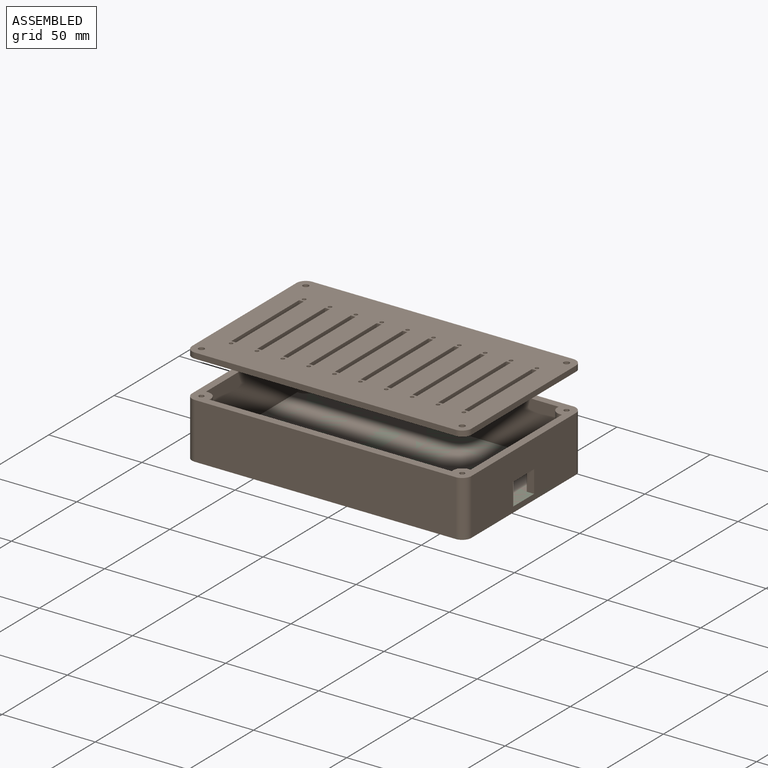
[diagram: assembled view]
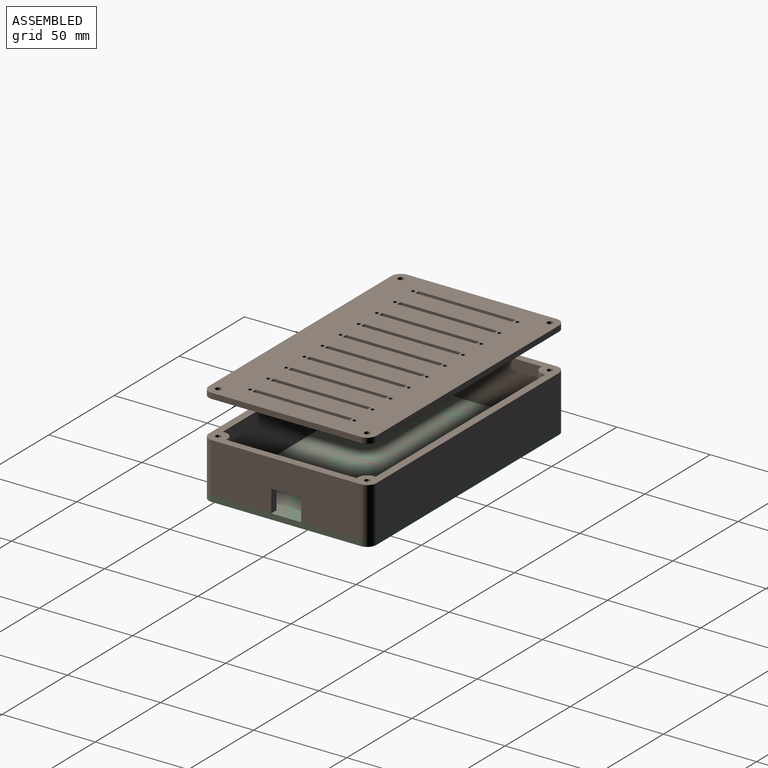
[diagram: assembled view, second angle]
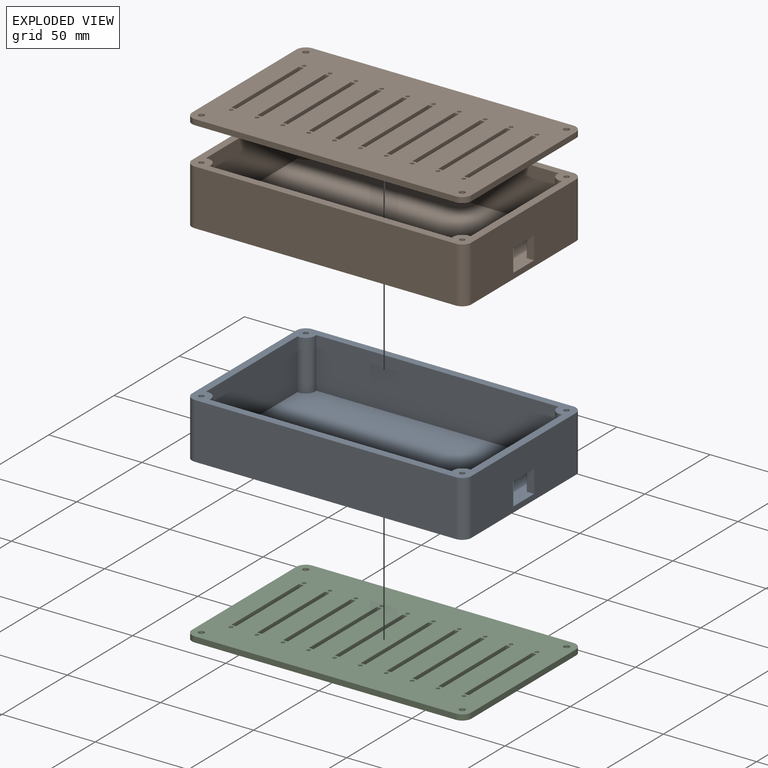
[diagram: exploded view]
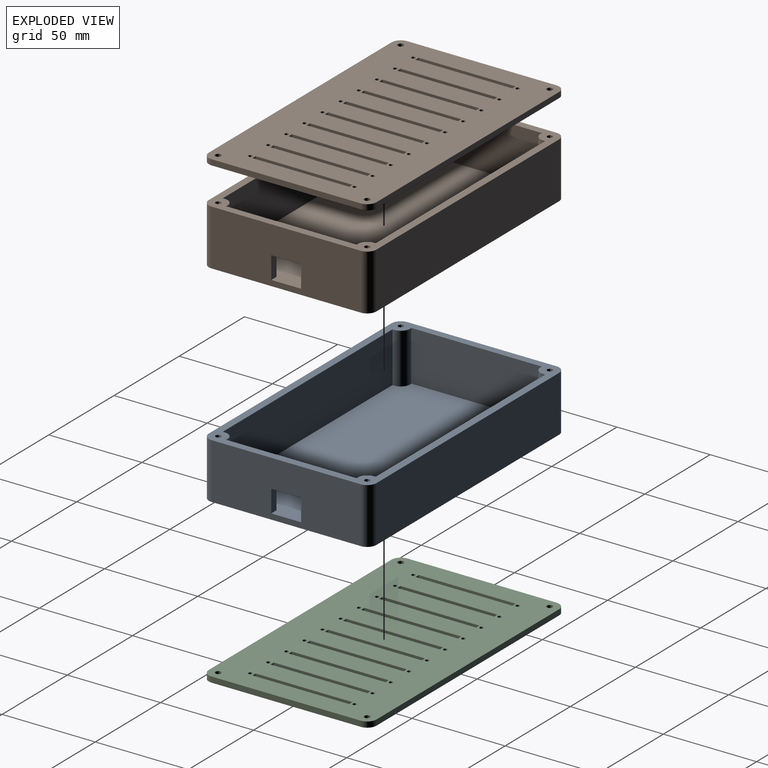
[diagram: exploded view, second angle]
FCSTD DOCUMENT  (FreeCAD 0.19R24276 (Git))
Label: mixer
License: All rights reserved
LicenseURL: http://en.wikipedia.org/wiki/All_rights_reserved
objects: Sketcher::SketchObject×8, PartDesign::Pocket×5, PartDesign::CoordinateSystem×3, PartDesign::Pad×3, App::DocumentObjectGroup×2, PartDesign::Body×2, PartDesign::Plane×2, App::Link×2, App::FeaturePython×1, PartDesign::LinearPattern×1, Spreadsheet::Sheet×1, App::Part×1, PartDesign::Point×1
note: 33 computed .brp shape members not serialized (recipe doc carries the construction recipe); baked Part::Feature solids carry a one-line shape summary decoded from their .brp

FEATURE [PartDesign::CoordinateSystem] LCS_Origin  label="Model_LCS"
  AttacherType = Attacher::AttachEngine3D
  MapMode = 2
  Support = -> [X_Axis]
FEATURE [App::DocumentObjectGroup] Constraints
FEATURE [App::FeaturePython] Variables  # WARN: FeaturePython — macro-defined, semantics opaque (R4)
  panel_remove = 20
FEATURE [PartDesign::CoordinateSystem] LCS_0  label="TopPanel_LCS"
  AttacherType = Attacher::AttachEngine3D
  MapMode = 2
  Support = -> [X_Axis001]
FEATURE [Sketcher::SketchObject] Sketch  label="TopPanel_Panel_S"
  FullyConstrained = true
  MapMode = 5
  Support = -> [XY_Plane001]
  sketch-geometry (8):
    g0: LineSegment StartX=-70 StartY=45 StartZ=0 EndX=70 EndY=45 EndZ=0
    g1: LineSegment StartX=75 StartY=40 StartZ=0 EndX=75 EndY=-40 EndZ=0
    g2: LineSegment StartX=70 StartY=-45 StartZ=0 EndX=-70 EndY=-45 EndZ=0
    g3: LineSegment StartX=-75 StartY=-40 StartZ=0 EndX=-75 EndY=40 EndZ=0
    g4: ArcOfCircle CenterX=-70 CenterY=40 CenterZ=0 NormalX=0 NormalY=0 NormalZ=1 AngleXU=0 Radius=5 StartAngle=1.5708 EndAngle=3.14159
    g5: ArcOfCircle CenterX=-70 CenterY=-40 CenterZ=0 NormalX=0 NormalY=0 NormalZ=1 AngleXU=0 Radius=5 StartAngle=3.14159 EndAngle=4.71239
    g6: ArcOfCircle CenterX=70 CenterY=-40 CenterZ=0 NormalX=0 NormalY=0 NormalZ=1 AngleXU=0 Radius=5 StartAngle=4.71239 EndAngle=6.28319
    g7: ArcOfCircle CenterX=70 CenterY=40 CenterZ=0 NormalX=0 NormalY=0 NormalZ=1 AngleXU=0 Radius=5 StartAngle=0 EndAngle=1.5708
  constraints (18):
    c: Horizontal(g2)
    c: Tangent(g0,g4) = 1.5708
    c: Tangent(g3,g4) = 1.5708
    c: Tangent(g3,g5) = 1.5708
    c: Tangent(g2,g5) = 1.5708
    c: Tangent(g1,g6) = 1.5708
    c: Tangent(g2,g6) = 1.5708
    c: Tangent(g0,g7) = 1.5708
    c: Tangent(g1,g7) = 1.5708
    c: Equal(g4,g5)
    c: Equal(g5,g7)
    c: Equal(g7,g6)
    c: Horizontal(g0)
    c: Radius(g4) = 5  'corner_radius'
    c: Symmetric(g3,g3,g-1)
    c: Symmetric(g3,g1,g-2)
    c: DistanceY(g2,g0) = 90  'depth'
    c: DistanceX(g3,g1) = 150  'width'
FEATURE [PartDesign::Pad] Pad  label="TopPanel_Panel"
  Direction = (1,1,1)
  Length = 3
  Length2 = 100
  Profile = -> Sketch
  Type = 0
FEATURE [Sketcher::SketchObject] Sketch002  label="TopPanel_FaderCutouts_S"
  AttachmentOffset = pos=(-62.5,0,0) rot=(0,0,1;0rad)
  FullyConstrained = true
  MapMode = 5
  Placement = pos=(-62.5,0,0) rot=(0,0,1;0rad)
  Support = -> [XY_Plane001]
  expr: .AttachmentOffset.Base.x = -<<Dimensions>>.fader_span / 2
  sketch-geometry (8):
    g0: LineSegment StartX=-1.25 StartY=26 StartZ=0 EndX=1.25 EndY=26 EndZ=0
    g1: LineSegment StartX=1.25 StartY=26 StartZ=0 EndX=1.25 EndY=-26 EndZ=0
    g2: LineSegment StartX=1.25 StartY=-26 StartZ=0 EndX=-1.25 EndY=-26 EndZ=0
    g3: LineSegment StartX=-1.25 StartY=-26 StartZ=0 EndX=-1.25 EndY=26 EndZ=0
    g4: Circle CenterX=0 CenterY=28 CenterZ=0 NormalX=0 NormalY=0 NormalZ=1 AngleXU=0 Radius=1
    g5: Circle CenterX=-1e-16 CenterY=-28 CenterZ=0 NormalX=0 NormalY=0 NormalZ=1 AngleXU=0 Radius=1
    g6: LineSegment StartX=0 StartY=28 StartZ=0 EndX=0 EndY=26 EndZ=0
    g7: LineSegment StartX=-1e-16 StartY=-28 StartZ=0 EndX=-1e-16 EndY=-26 EndZ=0
  constraints (20):
    c: Coincident(g0,g1)
    c: Coincident(g1,g2)
    c: Coincident(g2,g3)
    c: Coincident(g3,g0)
    c: Horizontal(g2)
    c: Vertical(g1)
    c: Equal(g4,g5)
    c: DistanceX(g0,g0) = 2.5  'cutout_width'
    c: DistanceY(g1,g1) = 52  'cutout_height'
    c: Diameter(g4) = 2  'mounting_hole_diameter'
    c: Vertical(g6)
    c: Vertical(g7)
    c: Coincident(g5,g7)
    c: Coincident(g4,g6)
    c: Symmetric(g0,g0,g6)
    c: Symmetric(g2,g1,g7)
    c: Equal(g6,g7)
    c: DistanceY(g6,g6) = 2  'mounting_hole_offset'
    c: Symmetric(g0,g2,g-1)
    c: Symmetric(g0,g0,g-2)
FEATURE [PartDesign::Pocket] Pocket  label="TopPanel_FaderCutout"
  BaseFeature = -> Pad
  Length = 0
  Length2 = 100
  Profile = -> Sketch002
  Reversed = true
  Type = 1
FEATURE [PartDesign::LinearPattern] LinearPattern  label="TopPanel_FaderCutouts"
  BaseFeature = -> Pocket
  Direction = -> Sketch002 [H_Axis]
  Length = 125
  Occurrences = 10
  Originals = -> [Pocket]
  expr: Length = <<Dimensions>>.fader_span
FEATURE [Spreadsheet::Sheet] Spreadsheet  label="Dimensions"
  cells = A1=Fader Span; B1(fader_span)==125mm
FEATURE [Sketcher::SketchObject] Sketch003  label="TopPanel_MountingHoles_S"
  FullyConstrained = true
  MapMode = 5
  Support = -> [XY_Plane001]
  expr: .Constraints.centres_y = Sketch.Constraints.depth - 10mm
  expr: .Constraints.centres_x = Sketch.Constraints.width - 10mm
  sketch-geometry (7):
    g0: LineSegment StartX=-70 StartY=2e-16 StartZ=0 EndX=70 EndY=-1e-16 EndZ=0
    g1: LineSegment StartX=-70 StartY=40 StartZ=0 EndX=-70 EndY=-40 EndZ=0
    g2: LineSegment StartX=70 StartY=40 StartZ=0 EndX=70 EndY=-40 EndZ=0
    g3: Circle CenterX=-70 CenterY=40 CenterZ=0 NormalX=0 NormalY=0 NormalZ=1 AngleXU=0 Radius=1.55
    g4: Circle CenterX=-70 CenterY=-40 CenterZ=0 NormalX=0 NormalY=0 NormalZ=1 AngleXU=0 Radius=1.55
    g5: Circle CenterX=70 CenterY=40 CenterZ=0 NormalX=0 NormalY=0 NormalZ=1 AngleXU=0 Radius=1.55
    g6: Circle CenterX=70 CenterY=-40 CenterZ=0 NormalX=0 NormalY=0 NormalZ=1 AngleXU=0 Radius=1.55
  constraints (17):
    c: Vertical(g1)
    c: Vertical(g2)
    c: Symmetric(g1,g1,g0)
    c: Symmetric(g2,g2,g0)
    c: DistanceX(g0,g0) = 140  'centres_x'
    c: Equal(g1,g2)
    c: DistanceY(g2,g2) = 80  'centres_y'
    c: Symmetric(g0,g0,g-2)
    c: PointOnObject(g-1,g0)
    c: Diameter(g3) = 3.1
    c: Equal(g3,g4)
    c: Equal(g4,g5)
    c: Equal(g5,g6)
    c: Coincident(g3,g1)
    c: Coincident(g4,g1)
    c: Coincident(g2,g5)
    c: Coincident(g2,g6)
FEATURE [PartDesign::Pocket] Pocket001  label="TopPanel_MoutingHoles"
  BaseFeature = -> LinearPattern
  Length = 0
  Length2 = 100
  Profile = -> Sketch003
  Reversed = true
  Type = 1
FEATURE [PartDesign::Body] TopPanel
  Group = -> [LCS_0,Sketch,Pad,Sketch002,Pocket,LinearPattern,Sketch003,Pocket001]
  Origin = -> Origin001
  Tip = -> Pocket001
FEATURE [PartDesign::CoordinateSystem] LCS_0001  label="Case_LCS"
  AttacherType = Attacher::AttachEngine3D
  MapMode = 2
  Support = -> [X_Axis002]
FEATURE [Sketcher::SketchObject] Sketch004  label="Case_Body_S"
  FullyConstrained = true
  MapMode = 5
  Support = -> [XY_Plane002]
  expr: Constraints[13] = Sketch.Constraints.corner_radius
  expr: .Constraints.depth = Sketch.Constraints[16]
  expr: .Constraints.width = Sketch.Constraints[17]
  sketch-geometry (8):
    g0: LineSegment StartX=-70 StartY=45 StartZ=0 EndX=70 EndY=45 EndZ=0
    g1: LineSegment StartX=75 StartY=40 StartZ=0 EndX=75 EndY=-40 EndZ=0
    g2: LineSegment StartX=70 StartY=-45 StartZ=0 EndX=-70 EndY=-45 EndZ=0
    g3: LineSegment StartX=-75 StartY=-40 StartZ=0 EndX=-75 EndY=40 EndZ=0
    g4: ArcOfCircle CenterX=-70 CenterY=40 CenterZ=0 NormalX=0 NormalY=0 NormalZ=1 AngleXU=0 Radius=5 StartAngle=1.5708 EndAngle=3.14159
    g5: ArcOfCircle CenterX=-70 CenterY=-40 CenterZ=0 NormalX=0 NormalY=0 NormalZ=1 AngleXU=0 Radius=5 StartAngle=3.14159 EndAngle=4.71239
    g6: ArcOfCircle CenterX=70 CenterY=-40 CenterZ=0 NormalX=0 NormalY=0 NormalZ=1 AngleXU=0 Radius=5 StartAngle=4.71239 EndAngle=6.28319
    g7: ArcOfCircle CenterX=70 CenterY=40 CenterZ=0 NormalX=0 NormalY=0 NormalZ=1 AngleXU=0 Radius=5 StartAngle=8e-16 EndAngle=1.5708
  constraints (18):
    c: Horizontal(g2)
    c: Tangent(g0,g4) = 1.5708
    c: Tangent(g3,g4) = 1.5708
    c: Tangent(g3,g5) = 1.5708
    c: Tangent(g2,g5) = 1.5708
    c: Tangent(g1,g6) = 1.5708
    c: Tangent(g2,g6) = 1.5708
    c: Tangent(g0,g7) = 1.5708
    c: Tangent(g1,g7) = 1.5708
    c: Equal(g4,g5)
    c: Equal(g5,g7)
    c: Equal(g7,g6)
    c: Horizontal(g0)
    c: Radius(g4) = 5
    c: Symmetric(g3,g3,g-1)
    c: Symmetric(g3,g1,g-2)
    c: DistanceY(g2,g0) = 90  'depth'
    c: DistanceX(g3,g1) = 150  'width'
FEATURE [PartDesign::Pad] Pad001  label="Case_Body"
  Direction = (1,1,1)
  Length = 30
  Length2 = 100
  Profile = -> Sketch004
  Type = 0
FEATURE [PartDesign::Plane] DatumPlane001  label="Case_BottomWall"
  AttachmentOffset = pos=(0,0,3) rot=(0,0,1;0rad)
  Length = 173.238
  MapMode = 5
  Placement = pos=(0,0,3) rot=(0,0,1;0rad)
  ResizeMode = 0
  Support = -> [XY_Plane002]
  Width = 113.238
FEATURE [Sketcher::SketchObject] Sketch005  label="Case_Internal_S"
  FullyConstrained = true
  MapMode = 5
  Placement = pos=(0,0,3) rot=(0,0,1;0rad)
  Support = -> [DatumPlane001]
  expr: .Constraints.width = <<TopPanel_Panel_S>>.Constraints.width - 8mm
  expr: .Constraints.depth = <<TopPanel_Panel_S>>.Constraints.depth - 8mm
  sketch-geometry (4):
    g0: LineSegment StartX=-71 StartY=41 StartZ=0 EndX=71 EndY=41 EndZ=0
    g1: LineSegment StartX=71 StartY=41 StartZ=0 EndX=71 EndY=-41 EndZ=0
    g2: LineSegment StartX=71 StartY=-41 StartZ=0 EndX=-71 EndY=-41 EndZ=0
    g3: LineSegment StartX=-71 StartY=-41 StartZ=0 EndX=-71 EndY=41 EndZ=0
  constraints (10):
    c: Coincident(g0,g1)
    c: Coincident(g1,g2)
    c: Coincident(g2,g3)
    c: Coincident(g3,g0)
    c: Horizontal(g2)
    c: Vertical(g1)
    c: Symmetric(g0,g0,g-2)
    c: Symmetric(g0,g2,g-1)
    c: DistanceX(g0,g0) = 142  'width'
    c: DistanceY(g1,g1) = 82  'depth'
FEATURE [PartDesign::Pocket] Pocket002  label="Case_Internal"
  BaseFeature = -> Pad001
  Length = 0
  Length2 = 100
  Profile = -> Sketch005
  Reversed = true
  Type = 1
FEATURE [Sketcher::SketchObject] Sketch006  label="Case_MountingHoleSupports_S"
  FullyConstrained = true
  MapMode = 5
  Placement = pos=(0,0,3) rot=(0,0,1;0rad)
  Support = -> [DatumPlane001]
  expr: .Constraints.centres_y = Sketch003.Constraints[6]
  expr: .Constraints.centres_x = Sketch003.Constraints[4]
  sketch-geometry (7):
    g0: LineSegment StartX=-70 StartY=1e-16 StartZ=0 EndX=70 EndY=0 EndZ=0
    g1: LineSegment StartX=-70 StartY=40 StartZ=0 EndX=-70 EndY=-40 EndZ=0
    g2: LineSegment StartX=70 StartY=40 StartZ=0 EndX=70 EndY=-40 EndZ=0
    g3: Circle CenterX=-70 CenterY=40 CenterZ=0 NormalX=0 NormalY=0 NormalZ=1 AngleXU=0 Radius=5
    g4: Circle CenterX=70 CenterY=40 CenterZ=0 NormalX=0 NormalY=0 NormalZ=1 AngleXU=0 Radius=5
    g5: Circle CenterX=70 CenterY=-40 CenterZ=0 NormalX=0 NormalY=0 NormalZ=1 AngleXU=0 Radius=5
    g6: Circle CenterX=-70 CenterY=-40 CenterZ=0 NormalX=0 NormalY=0 NormalZ=1 AngleXU=0 Radius=5
  constraints (17):
    c: Vertical(g1)
    c: Vertical(g2)
    c: Symmetric(g1,g1,g0)
    c: Symmetric(g2,g2,g0)
    c: DistanceX(g0,g0) = 140  'centres_x'
    c: Equal(g1,g2)
    c: DistanceY(g2,g2) = 80  'centres_y'
    c: Symmetric(g0,g0,g-2)
    c: PointOnObject(g-1,g0)
    c: Diameter(g3) = 10  'padding'
    c: Equal(g3,g4)
    c: Equal(g4,g5)
    c: Equal(g5,g6)
    c: Coincident(g3,g1)
    c: Coincident(g4,g2)
    c: Coincident(g2,g5)
    c: Coincident(g1,g6)
FEATURE [PartDesign::Plane] DatumPlane  label="Case_PanelFace"
  AttachmentOffset = pos=(0,0,30) rot=(0,0,1;0rad)
  Length = 173.238
  MapMode = 5
  Placement = pos=(0,0,30) rot=(0,0,1;0rad)
  ResizeMode = 0
  Support = -> [XY_Plane002]
  Width = 113.238
  expr: .AttachmentOffset.Base.z = <<Case_Body>>.Length
FEATURE [PartDesign::Pad] Pad002  label="Case_MountingHoleSupports"
  BaseFeature = -> Pocket002
  Direction = (1,1,1)
  Length = 10
  Length2 = 100
  Profile = -> Sketch006
  Type = 3
  UpToFace = -> DatumPlane [Plane]
FEATURE [Sketcher::SketchObject] Sketch007  label="Case_PanelMountingHoles_S"
  FullyConstrained = true
  MapMode = 5
  Placement = pos=(0,0,30) rot=(0,0,1;0rad)
  Support = -> [DatumPlane]
  expr: .Constraints.centres_y = Sketch003.Constraints[6]
  expr: .Constraints.centres_x = Sketch003.Constraints[4]
  sketch-geometry (31):
    g0: LineSegment StartX=-70 StartY=0 StartZ=0 EndX=70 EndY=0 EndZ=0
    g1: LineSegment StartX=-70 StartY=40 StartZ=0 EndX=-70 EndY=-40 EndZ=0
    g2: LineSegment StartX=70 StartY=40 StartZ=0 EndX=70 EndY=-40 EndZ=0
    g3: LineSegment StartX=-70 StartY=38.5 StartZ=0 EndX=-68.701 EndY=39.25 EndZ=0
    g4: LineSegment StartX=-68.701 StartY=39.25 StartZ=0 EndX=-68.701 EndY=40.75 EndZ=0
    g5: LineSegment StartX=-68.701 StartY=40.75 StartZ=0 EndX=-70 EndY=41.5 EndZ=0
    g6: LineSegment StartX=-70 StartY=41.5 StartZ=0 EndX=-71.299 EndY=40.75 EndZ=0
    g7: LineSegment StartX=-71.299 StartY=40.75 StartZ=0 EndX=-71.299 EndY=39.25 EndZ=0
    g8: LineSegment StartX=-71.299 StartY=39.25 StartZ=0 EndX=-70 EndY=38.5 EndZ=0
    g9: Circle CenterX=-70 CenterY=40 CenterZ=0 NormalX=0 NormalY=0 NormalZ=1 AngleXU=0 Radius=1.5
    g10: LineSegment StartX=-68.701 StartY=-40.75 StartZ=0 EndX=-68.701 EndY=-39.25 EndZ=0
    g11: LineSegment StartX=-68.701 StartY=-39.25 StartZ=0 EndX=-70 EndY=-38.5 EndZ=0
    g12: LineSegment StartX=-70 StartY=-38.5 StartZ=0 EndX=-71.299 EndY=-39.25 EndZ=0
    g13: LineSegment StartX=-71.299 StartY=-39.25 StartZ=0 EndX=-71.299 EndY=-40.75 EndZ=0
    g14: LineSegment StartX=-71.299 StartY=-40.75 StartZ=0 EndX=-70 EndY=-41.5 EndZ=0
    g15: LineSegment StartX=-70 StartY=-41.5 StartZ=0 EndX=-68.701 EndY=-40.75 EndZ=0
    g16: Circle CenterX=-70 CenterY=-40 CenterZ=0 NormalX=0 NormalY=0 NormalZ=1 AngleXU=0 Radius=1.5
    g17: LineSegment StartX=71.299 StartY=40.75 StartZ=0 EndX=70 EndY=41.5 EndZ=0
    g18: LineSegment StartX=70 StartY=41.5 StartZ=0 EndX=68.701 EndY=40.75 EndZ=0
    g19: LineSegment StartX=68.701 StartY=40.75 StartZ=0 EndX=68.701 EndY=39.25 EndZ=0
    g20: LineSegment StartX=68.701 StartY=39.25 StartZ=0 EndX=70 EndY=38.5 EndZ=0
    g21: LineSegment StartX=70 StartY=38.5 StartZ=0 EndX=71.299 EndY=39.25 EndZ=0
    g22: LineSegment StartX=71.299 StartY=39.25 StartZ=0 EndX=71.299 EndY=40.75 EndZ=0
    g23: Circle CenterX=70 CenterY=40 CenterZ=0 NormalX=0 NormalY=0 NormalZ=1 AngleXU=0 Radius=1.5
    g24: LineSegment StartX=71.299 StartY=-40.75 StartZ=0 EndX=71.299 EndY=-39.25 EndZ=0
    g25: LineSegment StartX=71.299 StartY=-39.25 StartZ=0 EndX=70 EndY=-38.5 EndZ=0
    g26: LineSegment StartX=70 StartY=-38.5 StartZ=0 EndX=68.701 EndY=-39.25 EndZ=0
    g27: LineSegment StartX=68.701 StartY=-39.25 StartZ=0 EndX=68.701 EndY=-40.75 EndZ=0
    g28: LineSegment StartX=68.701 StartY=-40.75 StartZ=0 EndX=70 EndY=-41.5 EndZ=0
    g29: LineSegment StartX=70 StartY=-41.5 StartZ=0 EndX=71.299 EndY=-40.75 EndZ=0
    g30: Circle CenterX=70 CenterY=-40 CenterZ=0 NormalX=0 NormalY=0 NormalZ=1 AngleXU=0 Radius=1.5
  constraints (73):
    c: Vertical(g1)
    c: Vertical(g2)
    c: Symmetric(g1,g1,g0)
    c: Symmetric(g2,g2,g0)
    c: DistanceX(g0,g0) = 140  'centres_x'
    c: Equal(g1,g2)
    c: DistanceY(g2,g2) = 80  'centres_y'
    c: Symmetric(g0,g0,g-2)
    c: PointOnObject(g-1,g0)
    c: Coincident(g3,g4)
    c: Coincident(g4,g5)
    c: Coincident(g5,g6)
    c: Coincident(g6,g7)
    c: Coincident(g7,g8)
    c: Coincident(g8,g3)
    c: Equal(g3, g4-g8) x5
    c: PointOnObject(g3,g9)
    c: PointOnObject(g4,g9)
    c: PointOnObject(g5,g9)
    c: PointOnObject(g6,g9)
    c: PointOnObject(g7,g9)
    c: PointOnObject(g8,g9)
    c: Coincident(g10,g11)
    c: Coincident(g11,g12)
    c: Coincident(g12,g13)
    c: Coincident(g13,g14)
    c: Coincident(g14,g15)
    c: Coincident(g15,g10)
    c: Equal(g10, g11-g15) x5
    c: PointOnObject(g10,g16)
    c: PointOnObject(g11,g16)
    c: PointOnObject(g12,g16)
    c: PointOnObject(g13,g16)
    c: PointOnObject(g14,g16)
    c: PointOnObject(g15,g16)
    c: Coincident(g1,g9)
    c: Coincident(g16,g1)
    c: Equal(g9,g16)
    c: Diameter(g9) = 3
    c: PointOnObject(g3,g1)
    c: PointOnObject(g11,g1)
    c: Coincident(g17,g18)
    c: Coincident(g18,g19)
    c: Coincident(g19,g20)
    c: Coincident(g20,g21)
    c: Coincident(g21,g22)
    c: Coincident(g22,g17)
    c: Equal(g17, g18-g22) x5
    c: PointOnObject(g17,g23)
    c: PointOnObject(g18,g23)
    c: PointOnObject(g19,g23)
    c: PointOnObject(g20,g23)
    c: PointOnObject(g21,g23)
    c: PointOnObject(g22,g23)
    c: Coincident(g23,g2)
    c: Coincident(g24,g25)
    c: Coincident(g25,g26)
    c: Coincident(g26,g27)
    c: Coincident(g27,g28)
    c: Coincident(g28,g29)
    c: Coincident(g29,g24)
    c: Equal(g24, g25-g29) x5
    c: PointOnObject(g24,g30)
    c: PointOnObject(g25,g30)
    c: PointOnObject(g26,g30)
    c: PointOnObject(g27,g30)
    c: PointOnObject(g28,g30)
    c: PointOnObject(g29,g30)
    c: Coincident(g30,g2)
    c: PointOnObject(g25,g2)
    c: PointOnObject(g20,g2)
    c: Equal(g16,g23)
    c: Equal(g23,g30)
FEATURE [PartDesign::Pocket] Pocket003  label="Case_PanelMountingHoles"
  BaseFeature = -> Pad002
  Length = 15
  Length2 = 100
  Profile = -> Sketch007
  Type = 0
FEATURE [App::Link] Case_A  label="Case_Ass"
  AssemblyType = Asm4EE
  AttachedBy = #LCS_0001
  AttachedTo = Parent Assembly#LCS_Origin
  LinkedObject = -> Case
  expr: Placement = LCS_Origin.Placement * AttachmentOffset * LCS_0001.Placement ^ -1
FEATURE [App::Link] TopPanel_A  label="TopPanel_Ass"
  AssemblyType = Asm4EE
  AttachedBy = #LCS_0
  AttachedTo = Case_A#DatumPlane
  AttachmentOffset = pos=(0,0,20) rot=(0,0,1;0rad)
  LinkPlacement = pos=(0,0,50) rot=(0,0,1;0rad)
  LinkedObject = -> TopPanel
  Placement = pos=(0,0,50) rot=(0,0,1;0rad)
  expr: .AttachmentOffset.Base.z = Variables.panel_remove
  expr: Placement = Case_A.Placement * DatumPlane.Placement * AttachmentOffset * LCS_0.Placement ^ -1
FEATURE [App::Part] Model
  Configuration = 0
  Group = -> [LCS_Origin,Constraints,Variables,Case_A,TopPanel_A]
  Origin = -> Origin
  Type = Assembly4 Model
FEATURE [PartDesign::Point] DatumPoint  label="Case_CableCutout_Point"
  AttacherType = Attacher::AttachEnginePoint
  MapMode = 41
  Placement = pos=(71,0,3) rot=(0,0,1;0rad)
  Support = -> [X_Axis002,Pocket003]
FEATURE [Sketcher::SketchObject] Sketch008  label="Case_CableCutout_S"
  FullyConstrained = true
  MapMode = 6
  Placement = pos=(71,0,3) rot=(0.57735,-0.57735,-0.57735;2.0944rad)
  Support = -> [Pocket003,DatumPoint]
  sketch-geometry (4):
    g0: LineSegment StartX=-8 StartY=12 StartZ=0 EndX=8 EndY=12 EndZ=0
    g1: LineSegment StartX=8 StartY=12 StartZ=0 EndX=8 EndY=0 EndZ=0
    g2: LineSegment StartX=8 StartY=0 StartZ=0 EndX=-8 EndY=0 EndZ=0
    g3: LineSegment StartX=-8 StartY=0 StartZ=0 EndX=-8 EndY=12 EndZ=0
  constraints (11):
    c: Coincident(g0,g1)
    c: Coincident(g1,g2)
    c: Coincident(g2,g3)
    c: Coincident(g3,g0)
    c: Horizontal(g0)
    c: Vertical(g1)
    c: Vertical(g3)
    c: PointOnObject(g1,g-1)
    c: Symmetric(g2,g1,g-2)
    c: DistanceY(g1,g1) = 12  'height'
    c: DistanceX(g0,g0) = 16  'width'
FEATURE [PartDesign::Pocket] Pocket004  label="Case_CableCutout"
  BaseFeature = -> Pocket003
  Length = 0
  Length2 = 100
  Profile = -> Sketch008
  Type = 3
  UpToFace = -> Pocket003 [Face13]
FEATURE [PartDesign::Body] Case
  Group = -> [LCS_0001,Sketch004,Pad001,DatumPlane001,Sketch005,Pocket002,Sketch006,DatumPlane,Pad002,Sketch007,Pocket003,DatumPoint,Sketch008,Pocket004]
  Origin = -> Origin002
  Tip = -> Pocket004
FEATURE [App::DocumentObjectGroup] Parts
  Group = -> [TopPanel,Case]
